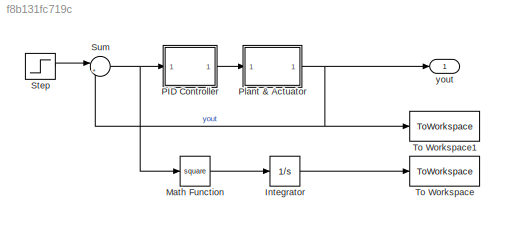
MODEL slx_f8b131fc719c
KIND model
CONFIG AbsTol = 1e-6
CONFIG EnableMultiTasking = off
CONFIG FixedStep = 1
CONFIG MaxStep = 0.1
CONFIG MinStep = auto
CONFIG RelTol = 1e-3
CONFIG SampleTimeConstraint = Unconstrained
CONFIG SolverName = ode5
CONFIG StartTime = 0.0
CONFIG StopTime = 100
BLOCK [Integrator] Integrator
BLOCK [Math] Math Function
  Operator = square
  SignedPower = on
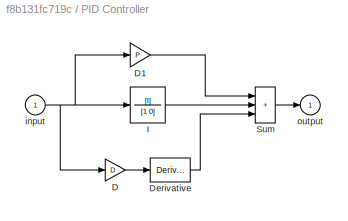
BLOCK [SubSystem] PID Controller
BLOCK [Gain] PID Controller/D
  Gain = D
  OutDataTypeStr = Inherit: Same as input
  ParamDataTypeStr = Inherit: Same as input
  SaturateOnIntegerOverflow = on
BLOCK [Gain] PID Controller/D1
  Gain = P
  OutDataTypeStr = Inherit: Same as input
  ParamDataTypeStr = Inherit: Same as input
  SaturateOnIntegerOverflow = on
BLOCK [Derivative] PID Controller/Derivative
BLOCK [TransferFcn] PID Controller/I
  Denominator = [1 0]
  Numerator = [I]
BLOCK [Sum] PID Controller/Sum
  IconShape = rectangular
  InputSameDT = on
  Inputs = +++
  OutDataTypeStr = Inherit: Same as first input
  SaturateOnIntegerOverflow = on
BLOCK [Inport] PID Controller/input
BLOCK [Outport] PID Controller/output
  InitialOutput = 0
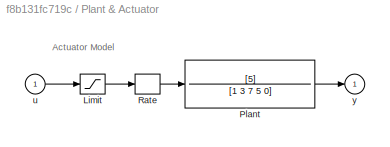
BLOCK [SubSystem] Plant & Actuator
BLOCK [Saturate] Plant & Actuator/Limit
  LowerLimit = -2
  UpperLimit = 2
BLOCK [TransferFcn] Plant & Actuator/Plant
  Denominator = [1 3 7 5 0]
  NameLocation = top
  Numerator = [5]
BLOCK [RateLimiter] Plant & Actuator/Rate
  FallingSlewLimit = -0.8
  RisingSlewLimit = 0.8
BLOCK [Inport] Plant & Actuator/u 
BLOCK [Outport] Plant & Actuator/y
  InitialOutput = 0
BLOCK [Step] Step
  SampleTime = 0
  Time = 0
BLOCK [Sum] Sum
  InputSameDT = on
  Inputs = |+-
  NameLocation = top
  OutDataTypeStr = Inherit: Same as first input
  SaturateOnIntegerOverflow = on
BLOCK [ToWorkspace] To Workspace
  MaxDataPoints = 1
  SampleTime = -1
  VariableName = e2
BLOCK [ToWorkspace] To Workspace1
  MaxDataPoints = 1
  SampleTime = -1
  SaveFormat = Structure With Time
  VariableName = simout
BLOCK [Outport] yout
ANNOTATION Plant & Actuator: Actuator Model
LINE Integrator:1 -> To Workspace:1
LINE Math Function:1 -> Integrator:1
LINE PID Controller/D1:1 -> PID Controller/Sum:1
LINE PID Controller/D:1 -> PID Controller/Derivative:1
LINE PID Controller/Derivative:1 -> PID Controller/Sum:3
LINE PID Controller/I:1 -> PID Controller/Sum:2
LINE PID Controller/Sum:1 -> PID Controller/output:1
NET PID Controller/input:1 -> PID Controller/D1:1, PID Controller/D:1, PID Controller/I:1
LINE PID Controller:1 -> Plant & Actuator:1
LINE Plant & Actuator/Limit:1 -> Plant & Actuator/Rate:1
LINE Plant & Actuator/Plant:1 -> Plant & Actuator/y:1
LINE Plant & Actuator/Rate:1 -> Plant & Actuator/Plant:1
LINE Plant & Actuator/u :1 -> Plant & Actuator/Limit:1
NET Plant & Actuator:1 -> Sum:2, To Workspace1:1, yout:1
LINE Step:1 -> Sum:1
NET Sum:1 -> Math Function:1, PID Controller:1
note: NET lines group one-source signal fan-out (src -> all destinations, sorted); 1:1 wires keep LINE
